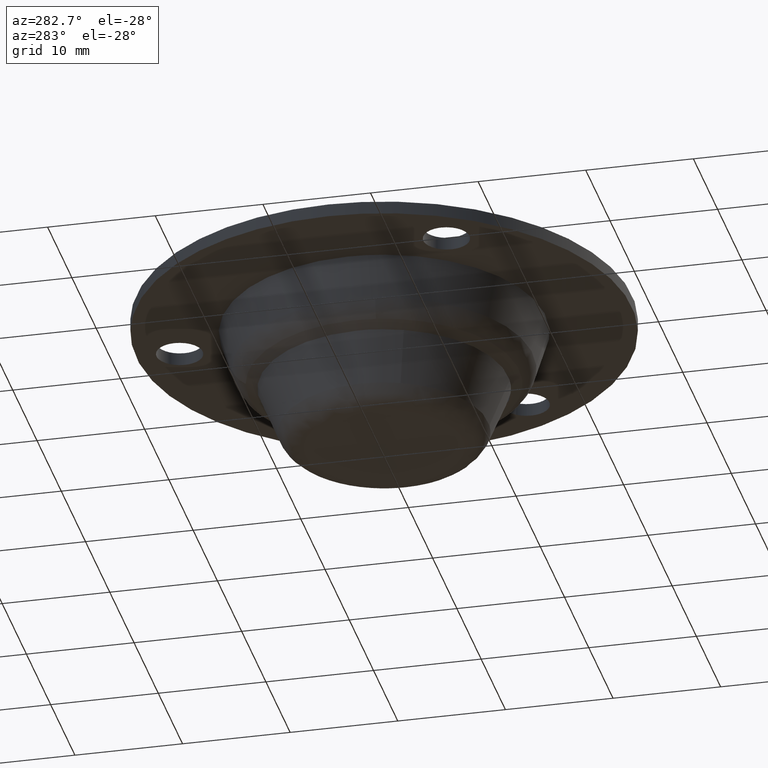
[diagram: clean part render]
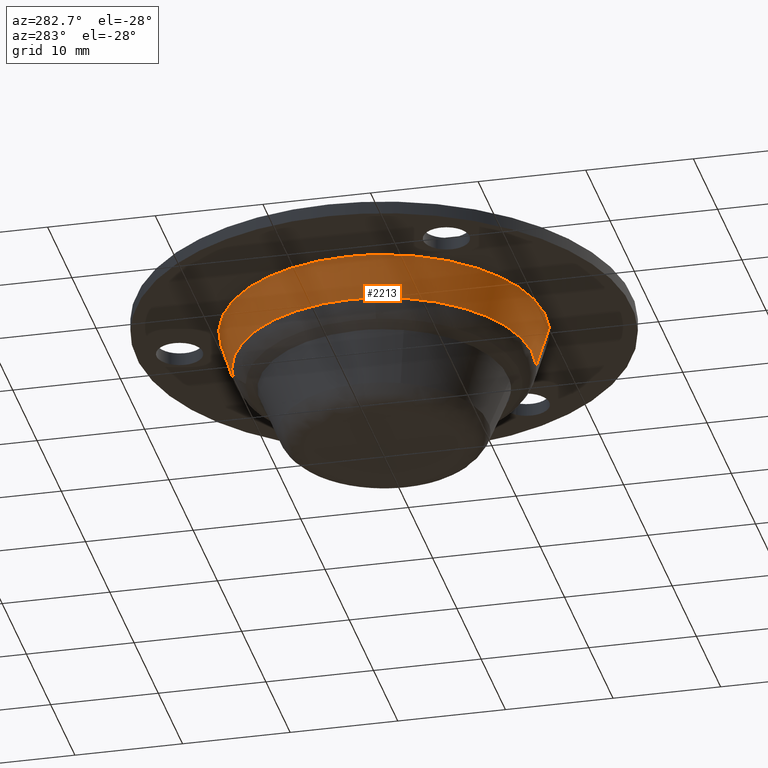
[diagram: same view with one face highlighted and labeled with its STEP entity id]
A machine part, auxiliary view. The second image highlights one B-rep face of the part: STEP entity #2213.
In plain terms, the highlighted face is a freeform B-spline surface patch.
Its self-contained STEP definition (entity closure, byte-faithful):
#2043=CARTESIAN_POINT('',(10.375377634567560,-9.080129755260535,7.920240518868441));
#2044=CARTESIAN_POINT('',(14.676376238055907,-4.165609157018388,7.920240518868441));
#2045=CARTESIAN_POINT('',(13.598486454090940,2.275606202785926,7.920240518868441));
#2046=CARTESIAN_POINT('',(11.322880251305010,15.874092656876863,7.920240518868441));
#2047=CARTESIAN_POINT('',(-2.275606202785926,13.598486454090940,7.920240518868441));
#2048=CARTESIAN_POINT('',(-15.874092656876863,11.322880251305010,7.920240518868441));
#2049=CARTESIAN_POINT('',(-13.598486454090940,-2.275606202785926,7.920240518868441));
#2050=CARTESIAN_POINT('',(-11.322880251305010,-15.874092656876863,7.920240518868441));
#2051=CARTESIAN_POINT('',(2.275606202785926,-13.598486454090940,7.920240518868441));
#2052=CARTESIAN_POINT('',(11.310556904649014,-9.898562530996639,11.896993987028294));
#2053=CARTESIAN_POINT('',(15.999223781649718,-4.541074173147167,11.896993987028289));
#2054=CARTESIAN_POINT('',(14.824178962282650,2.480716785038276,11.896993987028290));
#2055=CARTESIAN_POINT('',(12.343462177244369,17.304895747320920,11.896993987028289));
#2056=CARTESIAN_POINT('',(-2.480716785038276,14.824178962282650,11.896993987028290));
#2057=CARTESIAN_POINT('',(-17.304895747320920,12.343462177244369,11.896993987028289));
#2058=CARTESIAN_POINT('',(-14.824178962282650,-2.480716785038276,11.896993987028290));
#2059=CARTESIAN_POINT('',(-12.343462177244369,-17.304895747320920,11.896993987028289));
#2060=CARTESIAN_POINT('',(2.480716785038276,-14.824178962282650,11.896993987028290));
#2068=(BOUNDED_SURFACE()B_SPLINE_SURFACE(2,1,((#2043,#2052),(#2044,#2053),(#2045,#2054),(#2046,#2055),(#2047,#2056),(#2048,#2057),(#2049,#2058),(#2050,#2059),(#2051,#2060)),.UNSPECIFIED.,.F.,.F.,.U.)B_SPLINE_SURFACE_WITH_KNOTS((3,2,2,2,3),(2,2),(0.0,13.945699062769060,38.848733103428103,63.751767144087140,88.654801184746177),(0.0,4.166408599994792),.UNSPECIFIED.)GEOMETRIC_REPRESENTATION_ITEM()RATIONAL_B_SPLINE_SURFACE(((0.855662221768731,0.855662221768731),(0.835979797464467,0.835979797464467),(1.0,1.0),(0.707106781186548,0.707106781186548),(1.0,1.0),(0.707106781186548,0.707106781186548),(1.0,1.0),(0.707106781186548,0.707106781186548),(1.0,1.0)))REPRESENTATION_ITEM('')SURFACE());
#2069=CARTESIAN_POINT('',(13.817146940353620,0.0,8.014871502011490));
#2070=VERTEX_POINT('',#2069);
#2071=CARTESIAN_POINT('',(10.397631197542870,-9.099605214030277,8.014871502011527));
#2072=VERTEX_POINT('',#2071);
#2073=CARTESIAN_POINT('',(13.817146940353620,0.0,8.014871502011490));
#2074=CARTESIAN_POINT('',(13.817146940353625,-5.192307838852531,8.014871502011490));
#2075=CARTESIAN_POINT('',(10.397631197542868,-9.099605214030277,8.014871502011527));
#2083=(BOUNDED_CURVE()B_SPLINE_CURVE(2,(#2073,#2074,#2075),.UNSPECIFIED.,.F.,.U.)B_SPLINE_CURVE_WITH_KNOTS((3,3),(0.500000000000000,0.614965734048635),.UNSPECIFIED.)CURVE()GEOMETRIC_REPRESENTATION_ITEM()RATIONAL_B_SPLINE_CURVE((1.0,0.865309264404975,0.854497083107812))REPRESENTATION_ITEM(''));
#2084=EDGE_CURVE('',#2070,#2072,#2083,.T.);
#2085=ORIENTED_EDGE('',*,*,#2084,.F.);
#2086=CARTESIAN_POINT('',(-3.023204054250408,13.482350072375990,8.014868798896041));
#2087=VERTEX_POINT('',#2086);
#2088=CARTESIAN_POINT('',(-3.023204054250407,13.482350072375990,8.014868798896041));
#2089=CARTESIAN_POINT('',(-1.530139954567278,13.817146152628823,8.014868918725034));
#2090=CARTESIAN_POINT('',(0.000000166400708,13.817146198269210,8.014869068399401));
#2091=CARTESIAN_POINT('',(13.817147014340192,13.817146610401416,8.014870419957125));
#2092=CARTESIAN_POINT('',(13.817146940353620,0.0,8.014871502011490));
#2100=(BOUNDED_CURVE()B_SPLINE_CURVE(2,(#2088,#2089,#2090,#2091,#2092),.UNSPECIFIED.,.F.,.U.)B_SPLINE_CURVE_WITH_KNOTS((3,2,3),(0.212563972159840,0.250000000000000,0.500000000000000),.UNSPECIFIED.)CURVE()GEOMETRIC_REPRESENTATION_ITEM()RATIONAL_B_SPLINE_CURVE((0.925417194825414,0.956140965225222,1.0,0.707106781186547,1.0))REPRESENTATION_ITEM(''));
#2101=EDGE_CURVE('',#2087,#2070,#2100,.T.);
#2102=ORIENTED_EDGE('',*,*,#2101,.F.);
#2103=CARTESIAN_POINT('',(-13.817146940353620,0.0,8.014871502011490));
#2104=VERTEX_POINT('',#2103);
#2105=CARTESIAN_POINT('',(-13.817146940353620,0.0,8.014871502011490));
#2106=CARTESIAN_POINT('',(-13.817146847939487,11.061979320678134,8.014870150453767));
#2107=CARTESIAN_POINT('',(-3.023204054250407,13.482350072375990,8.014868798896041));
#2115=(BOUNDED_CURVE()B_SPLINE_CURVE(2,(#2105,#2106,#2107),.UNSPECIFIED.,.F.,.U.)B_SPLINE_CURVE_WITH_KNOTS((3,3),(0.0,0.212563972159840),.UNSPECIFIED.)CURVE()GEOMETRIC_REPRESENTATION_ITEM()RATIONAL_B_SPLINE_CURVE((1.0,0.750965815961325,0.925417194825414))REPRESENTATION_ITEM(''));
#2116=EDGE_CURVE('',#2104,#2087,#2115,.T.);
#2117=ORIENTED_EDGE('',*,*,#2116,.F.);
#2118=CARTESIAN_POINT('',(-13.633186390799150,-2.247170324118301,8.014871045845393));
#2119=VERTEX_POINT('',#2118);
#2120=CARTESIAN_POINT('',(-13.633186390799150,-2.247170324118301,8.014871045845393));
#2121=CARTESIAN_POINT('',(-13.817146940353620,-1.131114961520534,8.014871502011491));
#2122=CARTESIAN_POINT('',(-13.817146940353620,0.0,8.014871502011490));
#2130=(BOUNDED_CURVE()B_SPLINE_CURVE(2,(#2120,#2121,#2122),.UNSPECIFIED.,.F.,.U.)B_SPLINE_CURVE_WITH_KNOTS((3,3),(0.972006246325692,1.0),.UNSPECIFIED.)CURVE()GEOMETRIC_REPRESENTATION_ITEM()RATIONAL_B_SPLINE_CURVE((0.941751382001029,0.967203277518644,1.0))REPRESENTATION_ITEM(''));
#2131=EDGE_CURVE('',#2119,#2104,#2130,.T.);
#2132=ORIENTED_EDGE('',*,*,#2131,.F.);
#2133=CARTESIAN_POINT('',(2.280487022333916,-13.627653081594620,8.014871502012124));
#2134=VERTEX_POINT('',#2133);
#2135=CARTESIAN_POINT('',(2.280487022333916,-13.627653081594623,8.014871502012124));
#2136=CARTESIAN_POINT('',(1.148116373885196,-13.817146940353625,8.014871502011490));
#2137=CARTESIAN_POINT('',(0.0,-13.817146940353620,8.014871502011490));
#2138=CARTESIAN_POINT('',(-11.726096926331300,-13.817146940353618,8.014871502011490));
#2139=CARTESIAN_POINT('',(-13.633186390799150,-2.247170324118301,8.014871045845393));
#2147=(BOUNDED_CURVE()B_SPLINE_CURVE(2,(#2135,#2136,#2137,#2138,#2139),.UNSPECIFIED.,.F.,.U.)B_SPLINE_CURVE_WITH_KNOTS((3,2,3),(0.721599481758509,0.750000000000000,0.972006246325692),.UNSPECIFIED.)CURVE()GEOMETRIC_REPRESENTATION_ITEM()RATIONAL_B_SPLINE_CURVE((0.941013272811318,0.966726723185118,1.0,0.739903503667904,0.941751382001029))REPRESENTATION_ITEM(''));
#2148=EDGE_CURVE('',#2134,#2119,#2147,.T.);
#2149=ORIENTED_EDGE('',*,*,#2148,.F.);
#2150=CARTESIAN_POINT('',(2.475713979554878,-14.794284011547949,11.799999906443441));
#2151=VERTEX_POINT('',#2150);
#2152=CARTESIAN_POINT('',(2.280487022333916,-13.627653081594620,8.014871502012124));
#2153=CARTESIAN_POINT('',(2.475713979554878,-14.794284011547949,11.799999906443441));
#2154=QUASI_UNIFORM_CURVE('',1,(#2152,#2153),.UNSPECIFIED.,.F.,.U.);
#2155=EDGE_CURVE('',#2134,#2151,#2154,.T.);
#2156=ORIENTED_EDGE('',*,*,#2155,.T.);
#2157=CARTESIAN_POINT('',(-15.0,0.0,11.800000000000001));
#2158=VERTEX_POINT('',#2157);
#2159=CARTESIAN_POINT('',(2.475713979554877,-14.794284011547948,11.799999906443436));
#2160=CARTESIAN_POINT('',(1.246403778014197,-15.0,11.799999999999997));
#2161=CARTESIAN_POINT('',(0.0,-15.0,11.800000000000001));
#2162=CARTESIAN_POINT('',(-14.999999999999996,-14.999999999999996,11.799999999999997));
#2163=CARTESIAN_POINT('',(-15.0,0.0,11.800000000000001));
#2171=(BOUNDED_CURVE()B_SPLINE_CURVE(2,(#2159,#2160,#2161,#2162,#2163),.UNSPECIFIED.,.F.,.U.)B_SPLINE_CURVE_WITH_KNOTS((3,2,3),(0.721599484086802,0.750000000000000,1.0),.UNSPECIFIED.)CURVE()GEOMETRIC_REPRESENTATION_ITEM()RATIONAL_B_SPLINE_CURVE((0.941013277027330,0.966726725912883,1.0,0.707106781186547,1.0))REPRESENTATION_ITEM(''));
#2172=EDGE_CURVE('',#2151,#2158,#2171,.T.);
#2173=ORIENTED_EDGE('',*,*,#2172,.T.);
#2174=CARTESIAN_POINT('',(15.0,0.0,11.800000000000001));
#2175=VERTEX_POINT('',#2174);
#2176=CARTESIAN_POINT('',(-15.0,0.0,11.800000000000001));
#2177=CARTESIAN_POINT('',(-14.999999999999996,14.999999999999996,11.799999999999997));
#2178=CARTESIAN_POINT('',(0.0,15.0,11.800000000000001));
#2179=CARTESIAN_POINT('',(14.999999999999996,14.999999999999996,11.799999999999997));
#2180=CARTESIAN_POINT('',(15.0,0.0,11.800000000000001));
#2188=(BOUNDED_CURVE()B_SPLINE_CURVE(2,(#2176,#2177,#2178,#2179,#2180),.UNSPECIFIED.,.F.,.U.)B_SPLINE_CURVE_WITH_KNOTS((3,2,3),(0.0,0.250000000000000,0.500000000000000),.UNSPECIFIED.)CURVE()GEOMETRIC_REPRESENTATION_ITEM()RATIONAL_B_SPLINE_CURVE((1.0,0.707106781186547,1.0,0.707106781186547,1.0))REPRESENTATION_ITEM(''));
#2189=EDGE_CURVE('',#2158,#2175,#2188,.T.);
#2190=ORIENTED_EDGE('',*,*,#2189,.T.);
#2191=CARTESIAN_POINT('',(11.287747654159199,-9.878600755978724,11.800000000000001));
#2192=VERTEX_POINT('',#2191);
#2193=CARTESIAN_POINT('',(15.0,0.0,11.800000000000001));
#2194=CARTESIAN_POINT('',(14.999999999999996,-5.636808953323797,11.799999999999995));
#2195=CARTESIAN_POINT('',(11.287747654159187,-9.878600755978741,11.800000000000002));
#2203=(BOUNDED_CURVE()B_SPLINE_CURVE(2,(#2193,#2194,#2195),.UNSPECIFIED.,.F.,.U.)B_SPLINE_CURVE_WITH_KNOTS((3,3),(0.500000000000000,0.614965734048620),.UNSPECIFIED.)CURVE()GEOMETRIC_REPRESENTATION_ITEM()RATIONAL_B_SPLINE_CURVE((1.0,0.865309264404994,0.854497083107815))REPRESENTATION_ITEM(''));
#2204=EDGE_CURVE('',#2175,#2192,#2203,.T.);
#2205=ORIENTED_EDGE('',*,*,#2204,.T.);
#2206=CARTESIAN_POINT('',(10.397631197542870,-9.099605214030277,8.014871502011527));
#2207=CARTESIAN_POINT('',(11.287747654159199,-9.878600755978724,11.800000000000001));
#2208=QUASI_UNIFORM_CURVE('',1,(#2206,#2207),.UNSPECIFIED.,.F.,.U.);
#2209=EDGE_CURVE('',#2072,#2192,#2208,.T.);
#2210=ORIENTED_EDGE('',*,*,#2209,.F.);
#2211=EDGE_LOOP('',(#2085,#2102,#2117,#2132,#2149,#2156,#2173,#2190,#2205,#2210));
#2212=FACE_OUTER_BOUND('',#2211,.T.);
#2213=ADVANCED_FACE('',(#2212),#2068,.T.);